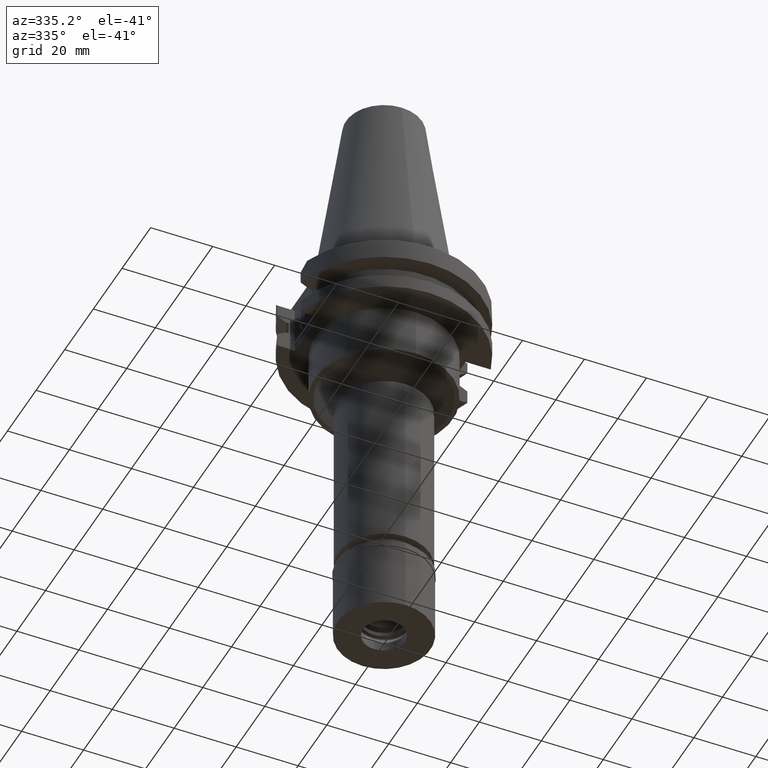
[diagram: clean part render]
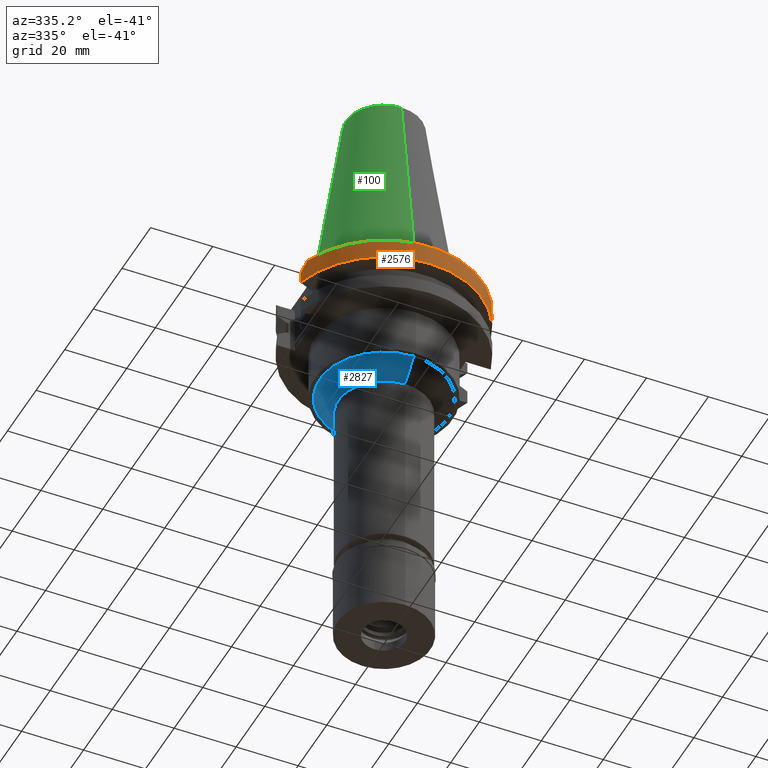
[diagram: same view with three faces highlighted in distinct colors, each labeled with its STEP entity id]
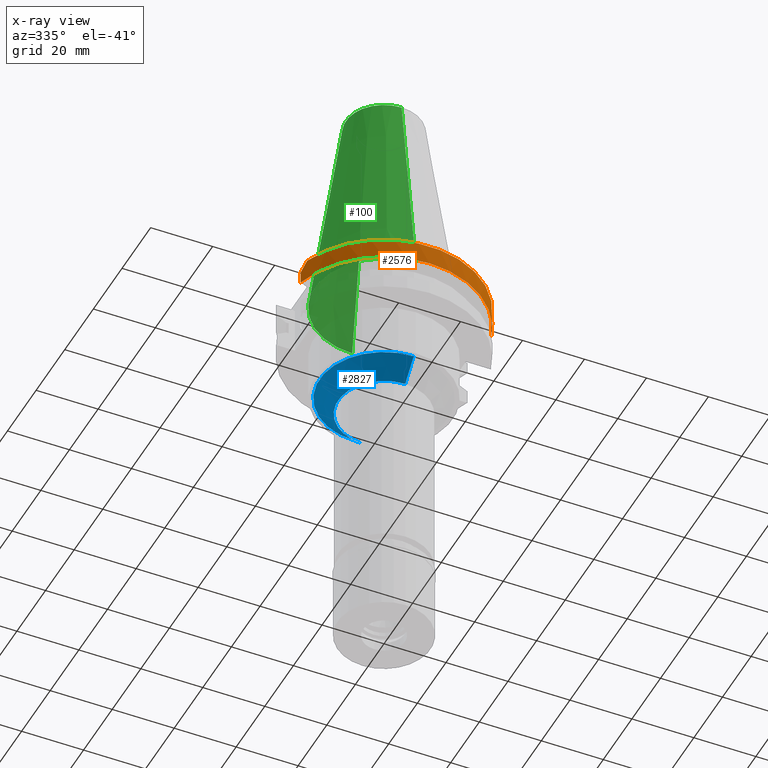
[diagram: x-ray of the same camera — body ghosted, the three highlighted faces saturated]
A machine part, auxiliary view with three faces highlighted in distinct colors.
The next image is the same camera in x-ray (body ghosted, the three faces saturated) — at least one of them is partly hidden behind the body in this view.
Their STEP definitions:

[orange] entity #2576 — the highlighted cylindrical surface (partial cylindrical patch) has radius 31.75 mm, axis along (0, 0, -1).
#105 = CARTESIAN_POINT ( 'NONE',  ( 30.67550162588999640, -8.189999999999999503, -3.700000000000000178 ) ) ;
#178 = EDGE_CURVE ( 'NONE', #283, #858, #2962, .T. ) ;
#194 = DIRECTION ( 'NONE',  ( 8.604051649367997190E-09, -3.222588497053997563E-08, 0.9999999999999994449 ) ) ;
#283 = VERTEX_POINT ( 'NONE', #426 ) ;
#306 = ORIENTED_EDGE ( 'NONE', *, *, #1524, .T. ) ;
#316 = CARTESIAN_POINT ( 'NONE',  ( 0.0000000000000000000, 0.0000000000000000000, -0.9999999999999000799 ) ) ;
#334 = DIRECTION ( 'NONE',  ( -0.9661575315241073270, -0.2579527559055020958, 0.0000000000000000000 ) ) ;
#338 = CARTESIAN_POINT ( 'NONE',  ( 30.67550146398999900, -8.190000606407000561, -7.601327811714999605 ) ) ;
#401 = DIRECTION ( 'NONE',  ( 0.0000000000000000000, 0.0000000000000000000, -1.000000000000000000 ) ) ;
#426 = CARTESIAN_POINT ( 'NONE',  ( 29.82399034335000110, -10.89000000000000057, -1.000000000001000089 ) ) ;
#442 = LINE ( 'NONE', #3017, #1874 ) ;
#453 = ORIENTED_EDGE ( 'NONE', *, *, #2071, .F. ) ;
#585 = CARTESIAN_POINT ( 'NONE',  ( 0.0000000000000000000, 0.0000000000000000000, -7.601333230925999551 ) ) ;
#642 = CARTESIAN_POINT ( 'NONE',  ( 0.0000000000000000000, 0.0000000000000000000, 77.51250000000000284 ) ) ;
#836 = DIRECTION ( 'NONE',  ( 0.0000000000000000000, -1.000000000000000000, 0.0000000000000000000 ) ) ;
#839 = AXIS2_PLACEMENT_3D ( 'NONE', #642, #401, #836 ) ;
#841 = CIRCLE ( 'NONE', #943, 31.74999999999998579 ) ;
#847 = DIRECTION ( 'NONE',  ( 0.0000000000000000000, 0.0000000000000000000, -1.000000000000000000 ) ) ;
#858 = VERTEX_POINT ( 'NONE', #2536 ) ;
#886 = EDGE_CURVE ( 'NONE', #3245, #858, #3117, .T. ) ;
#890 = EDGE_LOOP ( 'NONE', ( #1675, #2073, #1210, #2875, #306, #453 ) ) ;
#914 = EDGE_CURVE ( 'NONE', #1834, #3245, #442, .T. ) ;
#943 = AXIS2_PLACEMENT_3D ( 'NONE', #585, #1596, #334 ) ;
#1085 = VERTEX_POINT ( 'NONE', #338 ) ;
#1123 = CARTESIAN_POINT ( 'NONE',  ( 30.67550162588999640, -8.189999999999999503, -3.700000000000000178 ) ) ;
#1198 = CARTESIAN_POINT ( 'NONE',  ( -30.14799306409551960, -10.00266721625513888, -1.887332783744861908 ) ) ;
#1210 = ORIENTED_EDGE ( 'NONE', *, *, #886, .F. ) ;
#1230 = CARTESIAN_POINT ( 'NONE',  ( -29.82399034335000110, -10.89000000000000057, -1.000000000001000089 ) ) ;
#1343 = CARTESIAN_POINT ( 'NONE',  ( -30.67550165945999652, -8.189999874276001179, -7.601334354445000052 ) ) ;
#1403 = CYLINDRICAL_SURFACE ( 'NONE', #839, 31.75000000000000000 ) ;
#1406 = CARTESIAN_POINT ( 'NONE',  ( 29.82399034335000110, -10.89000000000000057, -1.000000000001000089 ) ) ;
#1524 = EDGE_CURVE ( 'NONE', #1834, #1085, #841, .T. ) ;
#1596 = DIRECTION ( 'NONE',  ( 0.0000000000000000000, 0.0000000000000000000, 1.000000000000000000 ) ) ;
#1675 = ORIENTED_EDGE ( 'NONE', *, *, #2018, .F. ) ;
#1834 = VERTEX_POINT ( 'NONE', #1343 ) ;
#1874 = VECTOR ( 'NONE', #194, 1000.000000000000114 ) ;
#1878 = FACE_OUTER_BOUND ( 'NONE', #890, .T. ) ;
#1896 = LINE ( 'NONE', #1123, #2724 ) ;
#1897 = VERTEX_POINT ( 'NONE', #2568 ) ;
#2018 = EDGE_CURVE ( 'NONE', #283, #1897, #3306, .T. ) ;
#2071 = EDGE_CURVE ( 'NONE', #1897, #1085, #1896, .T. ) ;
#2073 = ORIENTED_EDGE ( 'NONE', *, *, #178, .T. ) ;
#2382 = CARTESIAN_POINT ( 'NONE',  ( 30.43183015827552396, -9.102667216255303728, -2.787332783744696840 ) ) ;
#2432 = DIRECTION ( 'NONE',  ( -4.149952334242944498E-08, -1.554361666294979818E-07, -0.9999999999999870104 ) ) ;
#2487 = CARTESIAN_POINT ( 'NONE',  ( -30.43183015827552040, -9.102667216255303728, -2.787332783744696840 ) ) ;
#2536 = CARTESIAN_POINT ( 'NONE',  ( -29.82399034335000110, -10.89000000000000057, -1.000000000001000089 ) ) ;
#2568 = CARTESIAN_POINT ( 'NONE',  ( 30.67550162588999640, -8.189999999999999503, -3.700000000000000178 ) ) ;
#2576 = ADVANCED_FACE ( 'NONE', ( #1878 ), #1403, .T. ) ;
#2609 = DIRECTION ( 'NONE',  ( 0.0000000000000000000, -1.000000000000000000, 0.0000000000000000000 ) ) ;
#2724 = VECTOR ( 'NONE', #2432, 1000.000000000000227 ) ;
#2875 = ORIENTED_EDGE ( 'NONE', *, *, #914, .F. ) ;
#2893 = CARTESIAN_POINT ( 'NONE',  ( 30.14799306409552671, -10.00266721625513888, -1.887332783744861908 ) ) ;
#2952 = CARTESIAN_POINT ( 'NONE',  ( -30.67550162588999640, -8.189999999999999503, -3.700000000000000178 ) ) ;
#2962 = CIRCLE ( 'NONE', #3067, 31.75000000000000000 ) ;
#3017 = CARTESIAN_POINT ( 'NONE',  ( -30.67550165945999652, -8.189999874276001179, -7.601334354445000052 ) ) ;
#3067 = AXIS2_PLACEMENT_3D ( 'NONE', #316, #847, #2609 ) ;
#3117 = B_SPLINE_CURVE_WITH_KNOTS ( 'NONE', 3,
 ( #3324, #2487, #1198, #1230 ),
 .UNSPECIFIED., .F., .F.,
 ( 4, 4 ),
 ( 0.0000000000000000000, 1.000000000000000000 ),
 .UNSPECIFIED. ) ;
#3245 = VERTEX_POINT ( 'NONE', #2952 ) ;
#3306 = B_SPLINE_CURVE_WITH_KNOTS ( 'NONE', 3,
 ( #1406, #2893, #2382, #105 ),
 .UNSPECIFIED., .F., .F.,
 ( 4, 4 ),
 ( 0.0000000000000000000, 1.000000000000000000 ),
 .UNSPECIFIED. ) ;
#3324 = CARTESIAN_POINT ( 'NONE',  ( -30.67550162588999640, -8.189999999999999503, -3.700000000000000178 ) ) ;

[blue] entity #2827 — the highlighted conical surface has half-angle 45 deg.
#47 = CARTESIAN_POINT ( 'NONE',  ( 0.0000000000000000000, 20.75000000000000000, -35.00000000000000000 ) ) ;
#126 = CARTESIAN_POINT ( 'NONE',  ( 0.0000000000000000000, -20.75000000000000000, -35.00000000000000000 ) ) ;
#151 = AXIS2_PLACEMENT_3D ( 'NONE', #1961, #2732, #2253 ) ;
#162 = EDGE_LOOP ( 'NONE', ( #1930, #1192, #2019, #853 ) ) ;
#254 = CONICAL_SURFACE ( 'NONE', #151, 17.75000000000000000, 0.7853981633972997312 ) ;
#378 = LINE ( 'NONE', #2415, #2125 ) ;
#396 = CARTESIAN_POINT ( 'NONE',  ( 0.0000000000000000000, 14.75000000000000000, -41.00000000000000000 ) ) ;
#670 = FACE_OUTER_BOUND ( 'NONE', #162, .T. ) ;
#853 = ORIENTED_EDGE ( 'NONE', *, *, #3308, .T. ) ;
#885 = DIRECTION ( 'NONE',  ( 0.0000000000000000000, 0.7071067811865474617, -0.7071067811865474617 ) ) ;
#1070 = DIRECTION ( 'NONE',  ( 0.0000000000000000000, -0.7071067811865474617, -0.7071067811865474617 ) ) ;
#1083 = CARTESIAN_POINT ( 'NONE',  ( 0.0000000000000000000, 0.0000000000000000000, -35.00000000000000000 ) ) ;
#1114 = AXIS2_PLACEMENT_3D ( 'NONE', #1881, #2926, #2676 ) ;
#1187 = CARTESIAN_POINT ( 'NONE',  ( 0.0000000000000000000, -14.75000000000000000, -41.00000000000000000 ) ) ;
#1192 = ORIENTED_EDGE ( 'NONE', *, *, #2156, .F. ) ;
#1274 = CIRCLE ( 'NONE', #1640, 20.75000000000000000 ) ;
#1640 = AXIS2_PLACEMENT_3D ( 'NONE', #1083, #2132, #2901 ) ;
#1762 = VERTEX_POINT ( 'NONE', #126 ) ;
#1788 = LINE ( 'NONE', #47, #2943 ) ;
#1881 = CARTESIAN_POINT ( 'NONE',  ( 0.0000000000000000000, 0.0000000000000000000, -41.00000000000000000 ) ) ;
#1930 = ORIENTED_EDGE ( 'NONE', *, *, #2139, .F. ) ;
#1961 = CARTESIAN_POINT ( 'NONE',  ( 0.0000000000000000000, 0.0000000000000000000, -38.00000000000000000 ) ) ;
#2019 = ORIENTED_EDGE ( 'NONE', *, *, #3104, .T. ) ;
#2125 = VECTOR ( 'NONE', #885, 1000.000000000000114 ) ;
#2132 = DIRECTION ( 'NONE',  ( 0.0000000000000000000, 0.0000000000000000000, -1.000000000000000000 ) ) ;
#2139 = EDGE_CURVE ( 'NONE', #2247, #3226, #2235, .T. ) ;
#2156 = EDGE_CURVE ( 'NONE', #1762, #2247, #378, .T. ) ;
#2235 = CIRCLE ( 'NONE', #1114, 14.75000000000000000 ) ;
#2247 = VERTEX_POINT ( 'NONE', #1187 ) ;
#2253 = DIRECTION ( 'NONE',  ( 0.0000000000000000000, 1.000000000000000000, 0.0000000000000000000 ) ) ;
#2375 = CARTESIAN_POINT ( 'NONE',  ( 0.0000000000000000000, 20.75000000000000000, -35.00000000000000000 ) ) ;
#2415 = CARTESIAN_POINT ( 'NONE',  ( 0.0000000000000000000, -20.75000000000000000, -35.00000000000000000 ) ) ;
#2676 = DIRECTION ( 'NONE',  ( 0.0000000000000000000, -1.000000000000000000, 0.0000000000000000000 ) ) ;
#2732 = DIRECTION ( 'NONE',  ( 0.0000000000000000000, 0.0000000000000000000, 1.000000000000000000 ) ) ;
#2827 = ADVANCED_FACE ( 'NONE', ( #670 ), #254, .T. ) ;
#2901 = DIRECTION ( 'NONE',  ( 0.0000000000000000000, -1.000000000000000000, 0.0000000000000000000 ) ) ;
#2926 = DIRECTION ( 'NONE',  ( 0.0000000000000000000, 0.0000000000000000000, -1.000000000000000000 ) ) ;
#2943 = VECTOR ( 'NONE', #1070, 1000.000000000000114 ) ;
#3104 = EDGE_CURVE ( 'NONE', #1762, #3156, #1274, .T. ) ;
#3156 = VERTEX_POINT ( 'NONE', #2375 ) ;
#3226 = VERTEX_POINT ( 'NONE', #396 ) ;
#3308 = EDGE_CURVE ( 'NONE', #3156, #3226, #1788, .T. ) ;

[green] entity #100 — the highlighted conical surface has half-angle 8.297 deg.
#23 = FACE_OUTER_BOUND ( 'NONE', #682, .T. ) ;
#41 = DIRECTION ( 'NONE',  ( 0.0000000000000000000, 0.1443069799456937474, -0.9895329683941577192 ) ) ;
#100 = ADVANCED_FACE ( 'NONE', ( #23 ), #1240, .T. ) ;
#121 = EDGE_CURVE ( 'NONE', #2542, #1309, #602, .T. ) ;
#140 = EDGE_CURVE ( 'NONE', #1309, #2930, #531, .T. ) ;
#160 = ORIENTED_EDGE ( 'NONE', *, *, #140, .T. ) ;
#230 = CARTESIAN_POINT ( 'NONE',  ( 0.0000000000000000000, 22.22500000000000142, -2.060573933703999733E-13 ) ) ;
#244 = CARTESIAN_POINT ( 'NONE',  ( 0.0000000000000000000, 12.27186888070000137, 68.25000000000000000 ) ) ;
#531 = LINE ( 'NONE', #1547, #1186 ) ;
#546 = DIRECTION ( 'NONE',  ( 0.0000000000000000000, 0.0000000000000000000, -1.000000000000000000 ) ) ;
#602 = CIRCLE ( 'NONE', #2197, 12.27186888070000137 ) ;
#615 = ORIENTED_EDGE ( 'NONE', *, *, #121, .T. ) ;
#682 = EDGE_LOOP ( 'NONE', ( #1948, #2668, #615, #160 ) ) ;
#774 = CARTESIAN_POINT ( 'NONE',  ( 0.0000000000000000000, 0.0000000000000000000, -3.126388037344000570E-13 ) ) ;
#788 = EDGE_CURVE ( 'NONE', #2542, #2434, #2643, .T. ) ;
#827 = DIRECTION ( 'NONE',  ( 0.0000000000000000000, 0.0000000000000000000, -1.000000000000000000 ) ) ;
#870 = CARTESIAN_POINT ( 'NONE',  ( 0.0000000000000000000, -12.27186888070000137, 68.25000000000000000 ) ) ;
#923 = CIRCLE ( 'NONE', #1465, 22.22500000000000142 ) ;
#1024 = CARTESIAN_POINT ( 'NONE',  ( 0.0000000000000000000, 0.0000000000000000000, 34.12500000000000000 ) ) ;
#1045 = DIRECTION ( 'NONE',  ( 0.0000000000000000000, -1.000000000000000000, 0.0000000000000000000 ) ) ;
#1065 = DIRECTION ( 'NONE',  ( 0.0000000000000000000, -1.000000000000000000, 0.0000000000000000000 ) ) ;
#1108 = CARTESIAN_POINT ( 'NONE',  ( 0.0000000000000000000, -12.27186888070000137, 68.25000000000000000 ) ) ;
#1186 = VECTOR ( 'NONE', #41, 1000.000000000000114 ) ;
#1240 = CONICAL_SURFACE ( 'NONE', #3239, 17.24843444035000317, 0.1448125860318199565 ) ;
#1309 = VERTEX_POINT ( 'NONE', #244 ) ;
#1326 = EDGE_CURVE ( 'NONE', #2434, #2930, #923, .T. ) ;
#1465 = AXIS2_PLACEMENT_3D ( 'NONE', #774, #1548, #1045 ) ;
#1547 = CARTESIAN_POINT ( 'NONE',  ( 0.0000000000000000000, 12.27186888070000137, 68.25000000000000000 ) ) ;
#1548 = DIRECTION ( 'NONE',  ( 0.0000000000000000000, 0.0000000000000000000, -1.000000000000000000 ) ) ;
#1948 = ORIENTED_EDGE ( 'NONE', *, *, #1326, .F. ) ;
#2111 = DIRECTION ( 'NONE',  ( 0.0000000000000000000, -1.000000000000000000, 0.0000000000000000000 ) ) ;
#2127 = DIRECTION ( 'NONE',  ( 0.0000000000000000000, -0.1443069799456937474, -0.9895329683941577192 ) ) ;
#2197 = AXIS2_PLACEMENT_3D ( 'NONE', #2832, #546, #1065 ) ;
#2424 = VECTOR ( 'NONE', #2127, 1000.000000000000114 ) ;
#2434 = VERTEX_POINT ( 'NONE', #2820 ) ;
#2542 = VERTEX_POINT ( 'NONE', #870 ) ;
#2643 = LINE ( 'NONE', #1108, #2424 ) ;
#2668 = ORIENTED_EDGE ( 'NONE', *, *, #788, .F. ) ;
#2820 = CARTESIAN_POINT ( 'NONE',  ( 0.0000000000000000000, -22.22500000000000142, -2.060573933703999733E-13 ) ) ;
#2832 = CARTESIAN_POINT ( 'NONE',  ( 0.0000000000000000000, 0.0000000000000000000, 68.25000000000000000 ) ) ;
#2930 = VERTEX_POINT ( 'NONE', #230 ) ;
#3239 = AXIS2_PLACEMENT_3D ( 'NONE', #1024, #827, #2111 ) ;